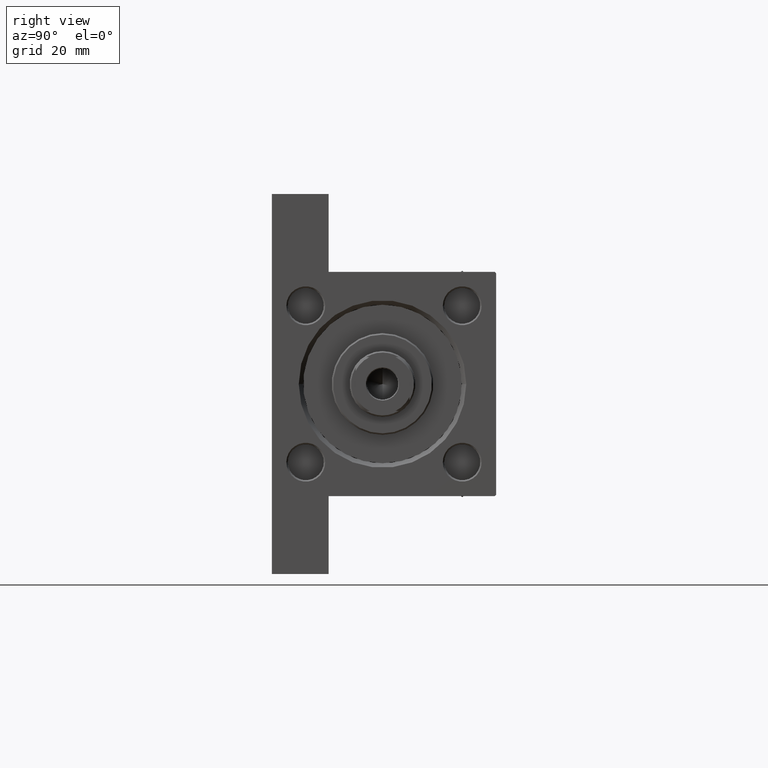
[diagram: clean part render]
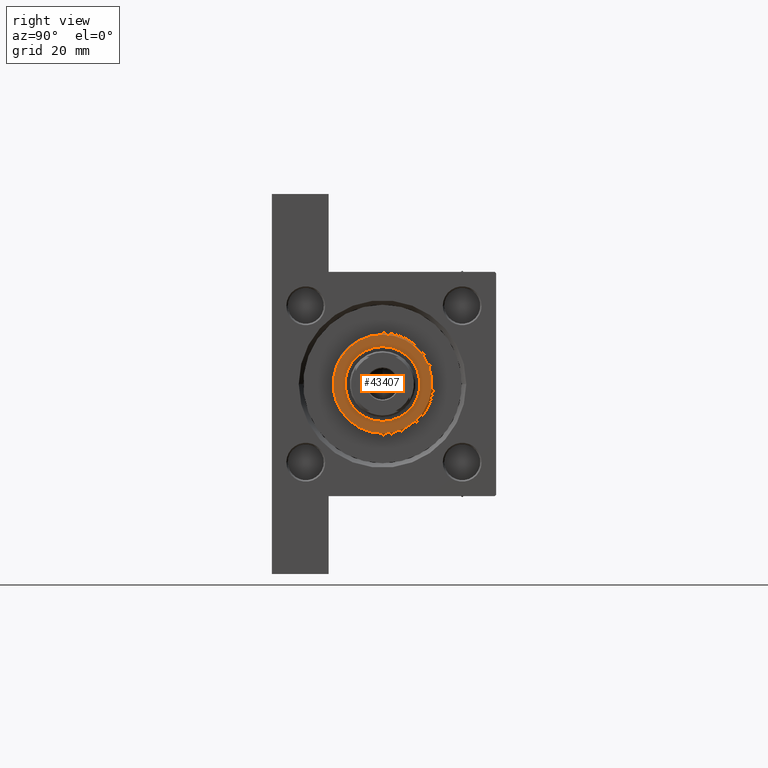
[diagram: same view with one face highlighted and labeled with its STEP entity id]
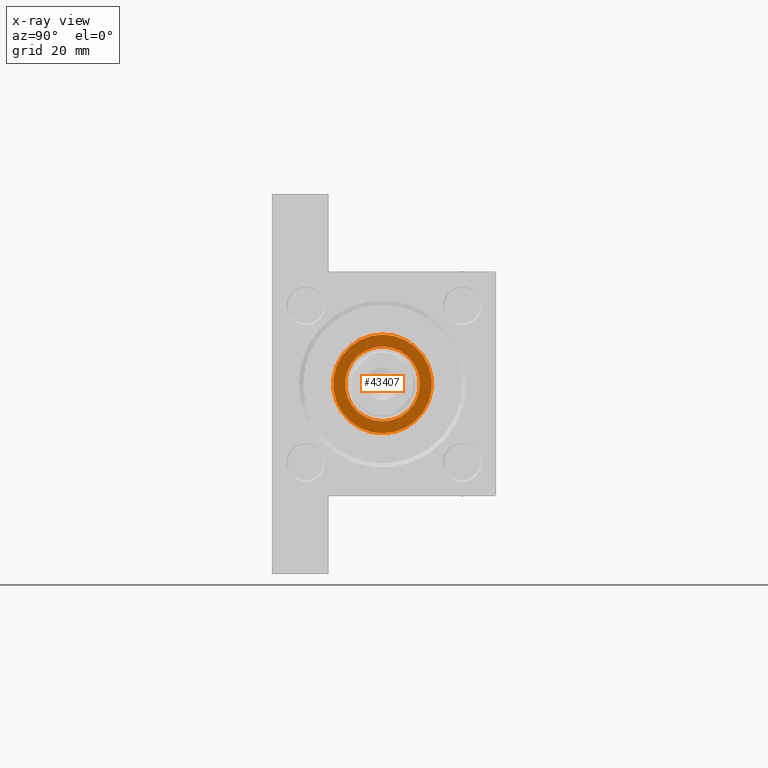
[diagram: x-ray of the same camera — body ghosted, the highlighted face saturated]
A machine part, right view. The second image highlights one B-rep face of the part: STEP entity #43407.
The next image is the same camera in x-ray: the body ghosted, the highlighted face saturated — about 0% of this face is hidden behind the body in this view.
In plain terms, the highlighted planar face has unit normal (1, 0, 0).
Its self-contained STEP definition (entity closure, byte-faithful):
#1461 = CIRCLE ( 'NONE', #40726, 12.50000000000000000 ) ;
#1804 = FACE_OUTER_BOUND ( 'NONE', #46338, .T. ) ;
#5036 = CIRCLE ( 'NONE', #36573, 16.50000000000000000 ) ;
#5655 = DIRECTION ( 'NONE',  ( 0.000000000000000000, 0.000000000000000000, 1.000000000000000000 ) ) ;
#6079 = ORIENTED_EDGE ( 'NONE', *, *, #6874, .T. ) ;
#6874 = EDGE_CURVE ( 'NONE', #39270, #14834, #42431, .T. ) ;
#10078 = DIRECTION ( 'NONE',  ( 1.000000000000000000, 0.000000000000000000, 0.000000000000000000 ) ) ;
#11497 = EDGE_LOOP ( 'NONE', ( #15668, #17349 ) ) ;
#14834 = VERTEX_POINT ( 'NONE', #40159 ) ;
#15668 = ORIENTED_EDGE ( 'NONE', *, *, #19009, .F. ) ;
#16484 = FACE_BOUND ( 'NONE', #11497, .T. ) ;
#16995 = DIRECTION ( 'NONE',  ( 1.000000000000000000, 0.000000000000000000, 0.000000000000000000 ) ) ;
#17341 = ORIENTED_EDGE ( 'NONE', *, *, #37940, .T. ) ;
#17349 = ORIENTED_EDGE ( 'NONE', *, *, #30053, .F. ) ;
#17438 = VERTEX_POINT ( 'NONE', #24749 ) ;
#17567 = CARTESIAN_POINT ( 'NONE',  ( -12.50000000000000000, 1.530808498934191521E-15, 37.69999999999999574 ) ) ;
#19009 = EDGE_CURVE ( 'NONE', #17438, #21586, #46640, .T. ) ;
#19730 = DIRECTION ( 'NONE',  ( 1.000000000000000000, 0.000000000000000000, 0.000000000000000000 ) ) ;
#20508 = CARTESIAN_POINT ( 'NONE',  ( 0.000000000000000000, 0.000000000000000000, 37.69999999999999574 ) ) ;
#21586 = VERTEX_POINT ( 'NONE', #17567 ) ;
#21635 = AXIS2_PLACEMENT_3D ( 'NONE', #31440, #35309, #16995 ) ;
#22863 = CARTESIAN_POINT ( 'NONE',  ( 0.000000000000000000, 0.000000000000000000, 37.69999999999999574 ) ) ;
#23256 = DIRECTION ( 'NONE',  ( 1.000000000000000000, 0.000000000000000000, -0.000000000000000000 ) ) ;
#24749 = CARTESIAN_POINT ( 'NONE',  ( 12.50000000000000000, 0.000000000000000000, 37.69999999999999574 ) ) ;
#27501 = DIRECTION ( 'NONE',  ( 1.000000000000000000, 0.000000000000000000, 0.000000000000000000 ) ) ;
#28254 = CARTESIAN_POINT ( 'NONE',  ( 16.50000000000000000, 2.051283388571816887E-15, 37.69999999999999574 ) ) ;
#30053 = EDGE_CURVE ( 'NONE', #21586, #17438, #1461, .T. ) ;
#31165 = CARTESIAN_POINT ( 'NONE',  ( 0.000000000000000000, 0.000000000000000000, 37.69999999999999574 ) ) ;
#31246 = CARTESIAN_POINT ( 'NONE',  ( 0.000000000000000000, 0.000000000000000000, 37.69999999999999574 ) ) ;
#31440 = CARTESIAN_POINT ( 'NONE',  ( 0.000000000000000000, 0.000000000000000000, 37.69999999999999574 ) ) ;
#34498 = DIRECTION ( 'NONE',  ( 0.000000000000000000, 0.000000000000000000, 1.000000000000000000 ) ) ;
#35280 = PLANE ( 'NONE',  #40612 ) ;
#35309 = DIRECTION ( 'NONE',  ( 0.000000000000000000, 0.000000000000000000, 1.000000000000000000 ) ) ;
#36573 = AXIS2_PLACEMENT_3D ( 'NONE', #31246, #45995, #10078 ) ;
#37578 = DIRECTION ( 'NONE',  ( 0.000000000000000000, 0.000000000000000000, 1.000000000000000000 ) ) ;
#37940 = EDGE_CURVE ( 'NONE', #14834, #39270, #5036, .T. ) ;
#39270 = VERTEX_POINT ( 'NONE', #28254 ) ;
#40159 = CARTESIAN_POINT ( 'NONE',  ( -16.50000000000000000, 0.000000000000000000, 37.69999999999999574 ) ) ;
#40612 = AXIS2_PLACEMENT_3D ( 'NONE', #31165, #5655, #23256 ) ;
#40726 = AXIS2_PLACEMENT_3D ( 'NONE', #22863, #37578, #19730 ) ;
#42431 = CIRCLE ( 'NONE', #21635, 16.50000000000000000 ) ;
#43407 = ADVANCED_FACE ( 'NONE', ( #16484, #1804 ), #35280, .T. ) ;
#44328 = AXIS2_PLACEMENT_3D ( 'NONE', #20508, #34498, #27501 ) ;
#45995 = DIRECTION ( 'NONE',  ( 0.000000000000000000, 0.000000000000000000, 1.000000000000000000 ) ) ;
#46338 = EDGE_LOOP ( 'NONE', ( #17341, #6079 ) ) ;
#46640 = CIRCLE ( 'NONE', #44328, 12.50000000000000000 ) ;